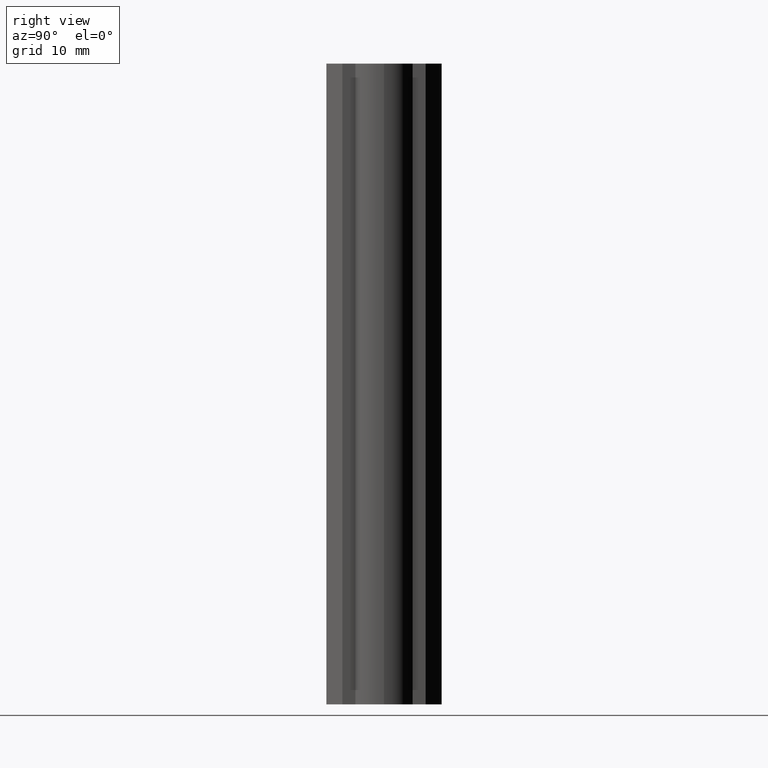
[diagram: clean part render]
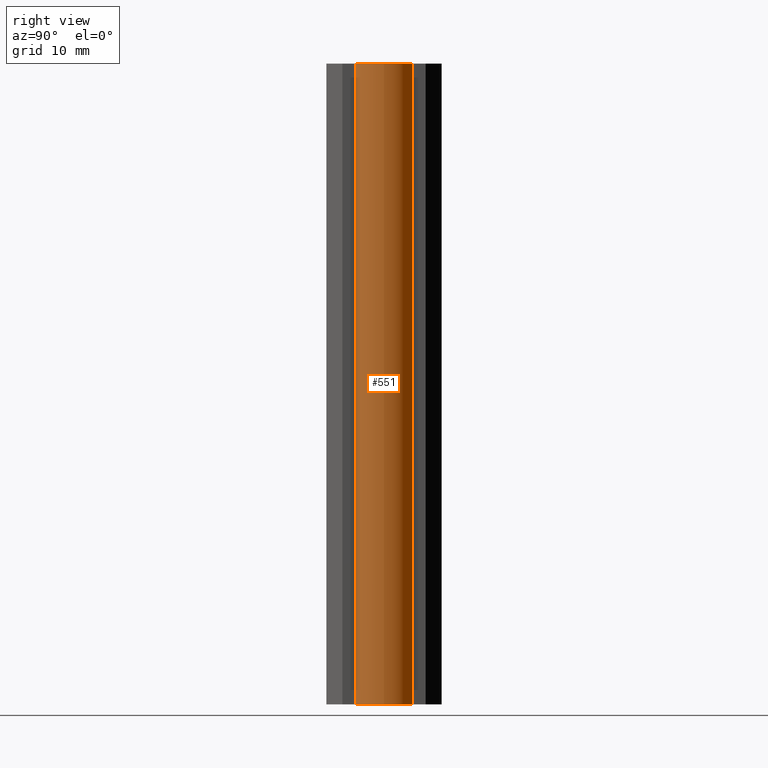
[diagram: same view with one face highlighted and labeled with its STEP entity id]
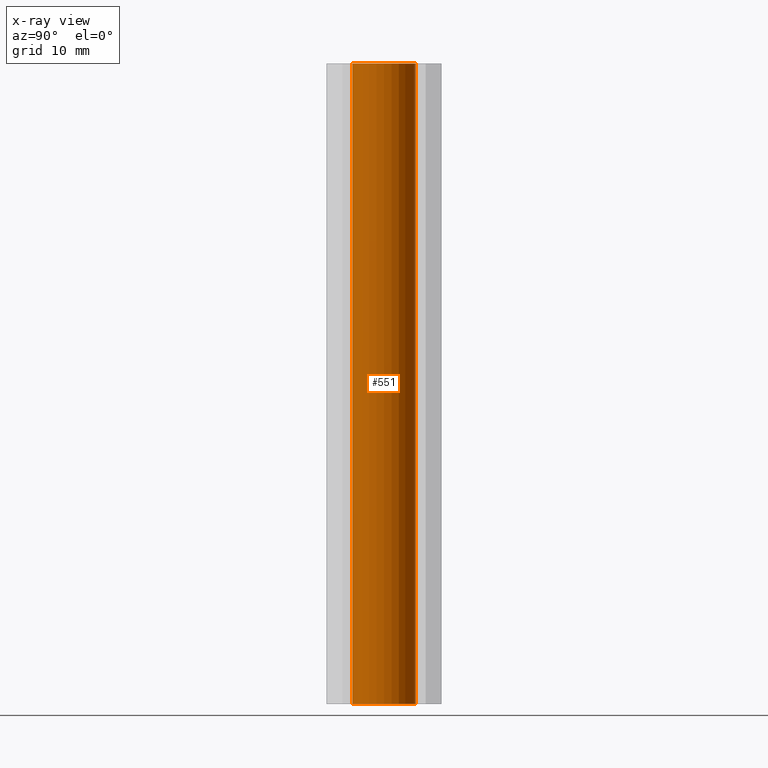
[diagram: x-ray of the same camera — body ghosted, the highlighted face saturated]
A machine part, right view. The second image highlights one B-rep face of the part: STEP entity #551.
The next image is the same camera in x-ray: the body ghosted, the highlighted face saturated — about 0% of this face is hidden behind the body in this view.
In plain terms, the highlighted cylindrical surface (bore or boss wall) has radius 5 mm, axis along (0, 0, 1).
Its self-contained STEP definition (entity closure, byte-faithful):
#39=CYLINDRICAL_SURFACE('',#663,5.);
#66=FACE_OUTER_BOUND('',#95,.T.);
#95=EDGE_LOOP('',(#499,#500,#501,#502));
#154=LINE('',#987,#211);
#211=VECTOR('',#821,5.);
#228=CIRCLE('',#664,5.);
#229=CIRCLE('',#665,5.);
#278=VERTEX_POINT('',#984);
#279=VERTEX_POINT('',#986);
#352=EDGE_CURVE('',#278,#278,#228,.T.);
#353=EDGE_CURVE('',#278,#279,#154,.T.);
#354=EDGE_CURVE('',#279,#279,#229,.T.);
#499=ORIENTED_EDGE('',*,*,#352,.F.);
#500=ORIENTED_EDGE('',*,*,#353,.T.);
#501=ORIENTED_EDGE('',*,*,#354,.F.);
#502=ORIENTED_EDGE('',*,*,#353,.F.);
#551=ADVANCED_FACE('',(#66),#39,.T.);
#663=AXIS2_PLACEMENT_3D('',#983,#817,#818);
#664=AXIS2_PLACEMENT_3D('',#985,#819,#820);
#665=AXIS2_PLACEMENT_3D('',#988,#822,#823);
#817=DIRECTION('center_axis',(0.,0.,1.));
#818=DIRECTION('ref_axis',(-1.,0.,0.));
#819=DIRECTION('center_axis',(0.,0.,1.));
#820=DIRECTION('ref_axis',(-1.,0.,0.));
#821=DIRECTION('',(0.,0.,-1.));
#822=DIRECTION('center_axis',(0.,0.,-1.));
#823=DIRECTION('ref_axis',(-1.,0.,0.));
#983=CARTESIAN_POINT('Origin',(0.,0.,0.));
#984=CARTESIAN_POINT('',(5.,6.12323399573677E-16,100.));
#985=CARTESIAN_POINT('Origin',(0.,0.,100.));
#986=CARTESIAN_POINT('',(5.,6.12323399573677E-16,0.));
#987=CARTESIAN_POINT('',(5.,6.12323399573677E-16,0.));
#988=CARTESIAN_POINT('Origin',(0.,0.,0.));